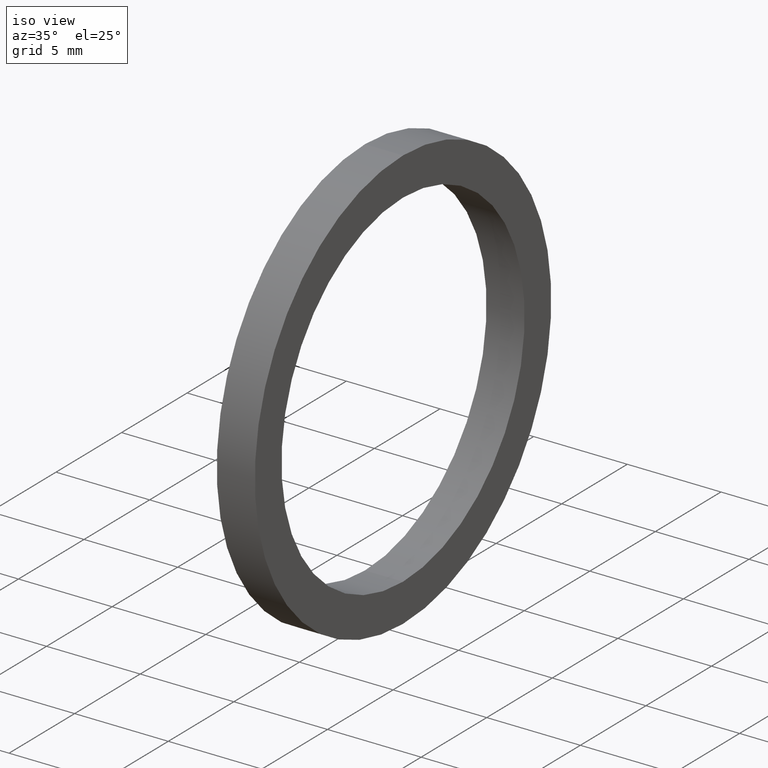
[diagram: clean part render]
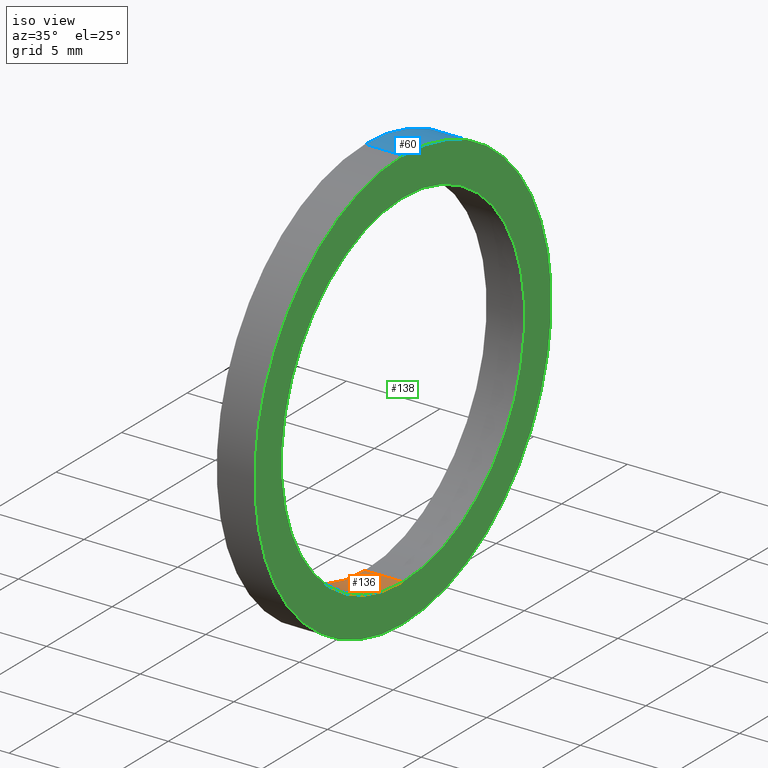
[diagram: same view with three faces highlighted in distinct colors, each labeled with its STEP entity id]
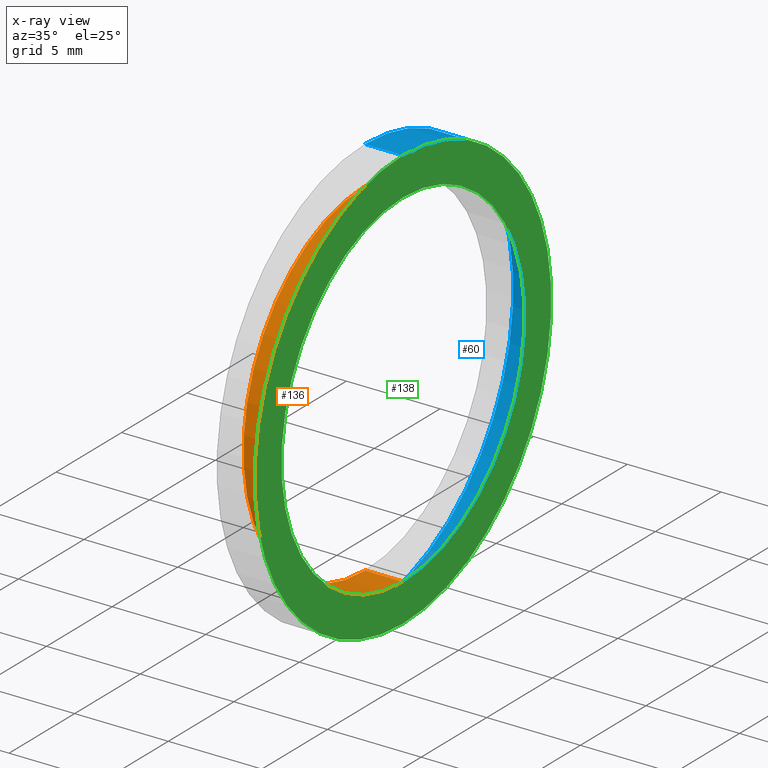
[diagram: x-ray of the same camera — body ghosted, the three highlighted faces saturated]
A machine part, iso view with three faces highlighted in distinct colors.
The next image is the same camera in x-ray (body ghosted, the three faces saturated) — at least one of them is partly hidden behind the body in this view.
Their STEP definitions:

[orange] entity #136 — the highlighted cylindrical surface (partial cylindrical patch) has radius 9.271 mm, axis along (-1, 0, 0).
#1 = FACE_OUTER_BOUND ( 'NONE', #134, .T. ) ;
#20 = DIRECTION ( 'NONE',  ( 0.0000000000000000000, 0.0000000000000000000, 1.000000000000000000 ) ) ;
#21 = DIRECTION ( 'NONE',  ( -1.000000000000000000, 0.0000000000000000000, 0.0000000000000000000 ) ) ;
#22 = CARTESIAN_POINT ( 'NONE',  ( 0.0000000000000000000, 0.0000000000000000000, 0.0000000000000000000 ) ) ;
#23 = AXIS2_PLACEMENT_3D ( 'NONE', #22, #21, #20 ) ;
#24 = CIRCLE ( 'NONE', #23, 0.3649999999999999900 ) ;
#31 = DIRECTION ( 'NONE',  ( -1.000000000000000000, 0.0000000000000000000, 0.0000000000000000000 ) ) ;
#32 = VECTOR ( 'NONE', #31, 39.37007874015748100 ) ;
#33 = CARTESIAN_POINT ( 'NONE',  ( -1.721125226614714300, 0.0000000000000000000, 0.3649999999999999900 ) ) ;
#39 = LINE ( 'NONE', #33, #32 ) ;
#58 = EDGE_CURVE ( 'NONE', #82, #78, #39, .T. ) ;
#59 = ORIENTED_EDGE ( 'NONE', *, *, #58, .F. ) ;
#61 = EDGE_CURVE ( 'NONE', #80, #78, #24, .T. ) ;
#77 = ORIENTED_EDGE ( 'NONE', *, *, #61, .T. ) ;
#78 = VERTEX_POINT ( 'NONE', #105 ) ;
#79 = ORIENTED_EDGE ( 'NONE', *, *, #81, .T. ) ;
#80 = VERTEX_POINT ( 'NONE', #104 ) ;
#81 = EDGE_CURVE ( 'NONE', #84, #80, #103, .T. ) ;
#82 = VERTEX_POINT ( 'NONE', #99 ) ;
#83 = EDGE_CURVE ( 'NONE', #84, #82, #98, .T. ) ;
#84 = VERTEX_POINT ( 'NONE', #93 ) ;
#85 = ORIENTED_EDGE ( 'NONE', *, *, #83, .F. ) ;
#93 = CARTESIAN_POINT ( 'NONE',  ( 0.07999999999999996000, 4.469960816887839200E-017, -0.3649999999999999900 ) ) ;
#94 = DIRECTION ( 'NONE',  ( 0.0000000000000000000, 0.0000000000000000000, 1.000000000000000000 ) ) ;
#95 = DIRECTION ( 'NONE',  ( -1.000000000000000000, 0.0000000000000000000, 0.0000000000000000000 ) ) ;
#96 = CARTESIAN_POINT ( 'NONE',  ( 0.07999999999999996000, 0.0000000000000000000, 0.0000000000000000000 ) ) ;
#97 = AXIS2_PLACEMENT_3D ( 'NONE', #96, #95, #94 ) ;
#98 = CIRCLE ( 'NONE', #97, 0.3649999999999999900 ) ;
#99 = CARTESIAN_POINT ( 'NONE',  ( 0.07999999999999996000, 0.0000000000000000000, 0.3649999999999999900 ) ) ;
#100 = DIRECTION ( 'NONE',  ( -1.000000000000000000, 0.0000000000000000000, 0.0000000000000000000 ) ) ;
#101 = VECTOR ( 'NONE', #100, 39.37007874015748100 ) ;
#102 = CARTESIAN_POINT ( 'NONE',  ( -1.721125226614714300, 4.469960816887839200E-017, -0.3649999999999999900 ) ) ;
#103 = LINE ( 'NONE', #102, #101 ) ;
#104 = CARTESIAN_POINT ( 'NONE',  ( 0.0000000000000000000, 4.469960816887839200E-017, -0.3649999999999999900 ) ) ;
#105 = CARTESIAN_POINT ( 'NONE',  ( 0.0000000000000000000, 0.0000000000000000000, 0.3649999999999999900 ) ) ;
#134 = EDGE_LOOP ( 'NONE', ( #85, #79, #77, #59 ) ) ;
#136 = ADVANCED_FACE ( 'NONE', ( #1 ), #250, .F. ) ;
#149 = DIRECTION ( 'NONE',  ( 0.0000000000000000000, 0.0000000000000000000, 1.000000000000000000 ) ) ;
#152 = CARTESIAN_POINT ( 'NONE',  ( -1.721125226614714300, 0.0000000000000000000, 0.0000000000000000000 ) ) ;
#158 = AXIS2_PLACEMENT_3D ( 'NONE', #152, #245, #149 ) ;
#245 = DIRECTION ( 'NONE',  ( -1.000000000000000000, 0.0000000000000000000, 0.0000000000000000000 ) ) ;
#250 = CYLINDRICAL_SURFACE ( 'NONE', #158, 0.3649999999999999900 ) ;

[blue] entity #60 — the highlighted cylindrical surface (partial cylindrical patch) has radius 11.303 mm, axis along (-1, 0, 0).
#8 = CARTESIAN_POINT ( 'NONE',  ( 0.07999999999999996000, 5.449678256205722000E-017, -0.4450000000000000100 ) ) ;
#9 = CARTESIAN_POINT ( 'NONE',  ( 0.07999999999999996000, 0.0000000000000000000, 0.4450000000000000100 ) ) ;
#11 = ORIENTED_EDGE ( 'NONE', *, *, #17, .T. ) ;
#15 = VERTEX_POINT ( 'NONE', #70 ) ;
#17 = EDGE_CURVE ( 'NONE', #112, #52, #69, .T. ) ;
#18 = ORIENTED_EDGE ( 'NONE', *, *, #54, .F. ) ;
#25 = DIRECTION ( 'NONE',  ( 0.0000000000000000000, 0.0000000000000000000, 1.000000000000000000 ) ) ;
#26 = DIRECTION ( 'NONE',  ( -1.000000000000000000, 0.0000000000000000000, 0.0000000000000000000 ) ) ;
#27 = CARTESIAN_POINT ( 'NONE',  ( -1.721125226614714300, 0.0000000000000000000, 0.0000000000000000000 ) ) ;
#28 = AXIS2_PLACEMENT_3D ( 'NONE', #27, #26, #25 ) ;
#29 = CYLINDRICAL_SURFACE ( 'NONE', #28, 0.4450000000000000100 ) ;
#30 = FACE_OUTER_BOUND ( 'NONE', #76, .T. ) ;
#40 = DIRECTION ( 'NONE',  ( 0.0000000000000000000, 0.0000000000000000000, 1.000000000000000000 ) ) ;
#41 = DIRECTION ( 'NONE',  ( -1.000000000000000000, 0.0000000000000000000, 0.0000000000000000000 ) ) ;
#42 = CARTESIAN_POINT ( 'NONE',  ( 0.0000000000000000000, 0.0000000000000000000, 0.0000000000000000000 ) ) ;
#43 = AXIS2_PLACEMENT_3D ( 'NONE', #42, #41, #40 ) ;
#44 = CIRCLE ( 'NONE', #43, 0.4450000000000000100 ) ;
#52 = VERTEX_POINT ( 'NONE', #63 ) ;
#53 = ORIENTED_EDGE ( 'NONE', *, *, #141, .F. ) ;
#54 = EDGE_CURVE ( 'NONE', #15, #52, #44, .T. ) ;
#60 = ADVANCED_FACE ( 'NONE', ( #30 ), #29, .T. ) ;
#63 = CARTESIAN_POINT ( 'NONE',  ( 0.0000000000000000000, 5.449678256205722000E-017, -0.4450000000000000100 ) ) ;
#66 = DIRECTION ( 'NONE',  ( -1.000000000000000000, 0.0000000000000000000, 0.0000000000000000000 ) ) ;
#67 = VECTOR ( 'NONE', #66, 39.37007874015748100 ) ;
#68 = CARTESIAN_POINT ( 'NONE',  ( -1.721125226614714300, 5.449678256205722000E-017, -0.4450000000000000100 ) ) ;
#69 = LINE ( 'NONE', #68, #67 ) ;
#70 = CARTESIAN_POINT ( 'NONE',  ( 0.0000000000000000000, 0.0000000000000000000, 0.4450000000000000100 ) ) ;
#76 = EDGE_LOOP ( 'NONE', ( #109, #11, #18, #53 ) ) ;
#109 = ORIENTED_EDGE ( 'NONE', *, *, #110, .T. ) ;
#110 = EDGE_CURVE ( 'NONE', #111, #112, #116, .T. ) ;
#111 = VERTEX_POINT ( 'NONE', #9 ) ;
#112 = VERTEX_POINT ( 'NONE', #8 ) ;
#113 = DIRECTION ( 'NONE',  ( 0.0000000000000000000, 0.0000000000000000000, 1.000000000000000000 ) ) ;
#114 = DIRECTION ( 'NONE',  ( -1.000000000000000000, 0.0000000000000000000, 0.0000000000000000000 ) ) ;
#115 = AXIS2_PLACEMENT_3D ( 'NONE', #122, #114, #113 ) ;
#116 = CIRCLE ( 'NONE', #115, 0.4450000000000000100 ) ;
#122 = CARTESIAN_POINT ( 'NONE',  ( 0.07999999999999996000, 0.0000000000000000000, 0.0000000000000000000 ) ) ;
#141 = EDGE_CURVE ( 'NONE', #111, #15, #164, .T. ) ;
#161 = DIRECTION ( 'NONE',  ( -1.000000000000000000, 0.0000000000000000000, 0.0000000000000000000 ) ) ;
#162 = VECTOR ( 'NONE', #161, 39.37007874015748100 ) ;
#163 = CARTESIAN_POINT ( 'NONE',  ( -1.721125226614714300, 0.0000000000000000000, 0.4450000000000000100 ) ) ;
#164 = LINE ( 'NONE', #163, #162 ) ;

[green] entity #138 — the highlighted planar face has unit normal (1, 0, 0).
#8 = CARTESIAN_POINT ( 'NONE',  ( 0.07999999999999996000, 5.449678256205722000E-017, -0.4450000000000000100 ) ) ;
#9 = CARTESIAN_POINT ( 'NONE',  ( 0.07999999999999996000, 0.0000000000000000000, 0.4450000000000000100 ) ) ;
#10 = EDGE_CURVE ( 'NONE', #112, #111, #75, .T. ) ;
#71 = DIRECTION ( 'NONE',  ( 0.0000000000000000000, 0.0000000000000000000, 1.000000000000000000 ) ) ;
#72 = DIRECTION ( 'NONE',  ( -1.000000000000000000, 0.0000000000000000000, 0.0000000000000000000 ) ) ;
#73 = CARTESIAN_POINT ( 'NONE',  ( 0.07999999999999996000, 0.0000000000000000000, 0.0000000000000000000 ) ) ;
#74 = AXIS2_PLACEMENT_3D ( 'NONE', #73, #72, #71 ) ;
#75 = CIRCLE ( 'NONE', #74, 0.4450000000000000100 ) ;
#82 = VERTEX_POINT ( 'NONE', #99 ) ;
#83 = EDGE_CURVE ( 'NONE', #84, #82, #98, .T. ) ;
#84 = VERTEX_POINT ( 'NONE', #93 ) ;
#93 = CARTESIAN_POINT ( 'NONE',  ( 0.07999999999999996000, 4.469960816887839200E-017, -0.3649999999999999900 ) ) ;
#94 = DIRECTION ( 'NONE',  ( 0.0000000000000000000, 0.0000000000000000000, 1.000000000000000000 ) ) ;
#95 = DIRECTION ( 'NONE',  ( -1.000000000000000000, 0.0000000000000000000, 0.0000000000000000000 ) ) ;
#96 = CARTESIAN_POINT ( 'NONE',  ( 0.07999999999999996000, 0.0000000000000000000, 0.0000000000000000000 ) ) ;
#97 = AXIS2_PLACEMENT_3D ( 'NONE', #96, #95, #94 ) ;
#98 = CIRCLE ( 'NONE', #97, 0.3649999999999999900 ) ;
#99 = CARTESIAN_POINT ( 'NONE',  ( 0.07999999999999996000, 0.0000000000000000000, 0.3649999999999999900 ) ) ;
#110 = EDGE_CURVE ( 'NONE', #111, #112, #116, .T. ) ;
#111 = VERTEX_POINT ( 'NONE', #9 ) ;
#112 = VERTEX_POINT ( 'NONE', #8 ) ;
#113 = DIRECTION ( 'NONE',  ( 0.0000000000000000000, 0.0000000000000000000, 1.000000000000000000 ) ) ;
#114 = DIRECTION ( 'NONE',  ( -1.000000000000000000, 0.0000000000000000000, 0.0000000000000000000 ) ) ;
#115 = AXIS2_PLACEMENT_3D ( 'NONE', #122, #114, #113 ) ;
#116 = CIRCLE ( 'NONE', #115, 0.4450000000000000100 ) ;
#122 = CARTESIAN_POINT ( 'NONE',  ( 0.07999999999999996000, 0.0000000000000000000, 0.0000000000000000000 ) ) ;
#124 = ORIENTED_EDGE ( 'NONE', *, *, #110, .F. ) ;
#125 = ORIENTED_EDGE ( 'NONE', *, *, #10, .F. ) ;
#130 = ORIENTED_EDGE ( 'NONE', *, *, #83, .T. ) ;
#131 = EDGE_LOOP ( 'NONE', ( #124, #125 ) ) ;
#137 = EDGE_LOOP ( 'NONE', ( #140, #130 ) ) ;
#138 = ADVANCED_FACE ( 'NONE', ( #249, #238 ), #252, .T. ) ;
#139 = EDGE_CURVE ( 'NONE', #82, #84, #144, .T. ) ;
#140 = ORIENTED_EDGE ( 'NONE', *, *, #139, .T. ) ;
#144 = CIRCLE ( 'NONE', #155, 0.3649999999999999900 ) ;
#147 = DIRECTION ( 'NONE',  ( 1.000000000000000000, 0.0000000000000000000, 0.0000000000000000000 ) ) ;
#148 = CARTESIAN_POINT ( 'NONE',  ( 0.08000000000000000200, -0.3649999999999999900, 0.0000000000000000000 ) ) ;
#153 = DIRECTION ( 'NONE',  ( -1.000000000000000000, 0.0000000000000000000, 0.0000000000000000000 ) ) ;
#154 = CARTESIAN_POINT ( 'NONE',  ( 0.07999999999999996000, 0.0000000000000000000, 0.0000000000000000000 ) ) ;
#155 = AXIS2_PLACEMENT_3D ( 'NONE', #154, #153, #160 ) ;
#156 = DIRECTION ( 'NONE',  ( 0.0000000000000000000, 0.0000000000000000000, -1.000000000000000000 ) ) ;
#160 = DIRECTION ( 'NONE',  ( 0.0000000000000000000, 0.0000000000000000000, 1.000000000000000000 ) ) ;
#238 = FACE_OUTER_BOUND ( 'NONE', #131, .T. ) ;
#249 = FACE_BOUND ( 'NONE', #137, .T. ) ;
#251 = AXIS2_PLACEMENT_3D ( 'NONE', #148, #147, #156 ) ;
#252 = PLANE ( 'NONE',  #251 ) ;